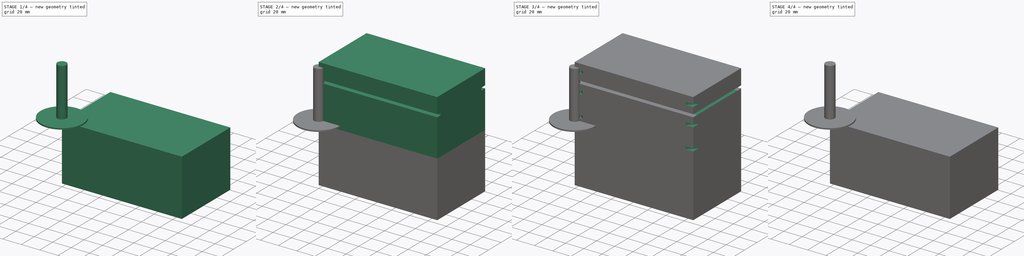
[diagram: build sequence overview — one tinted view per stage of 4, left to right]
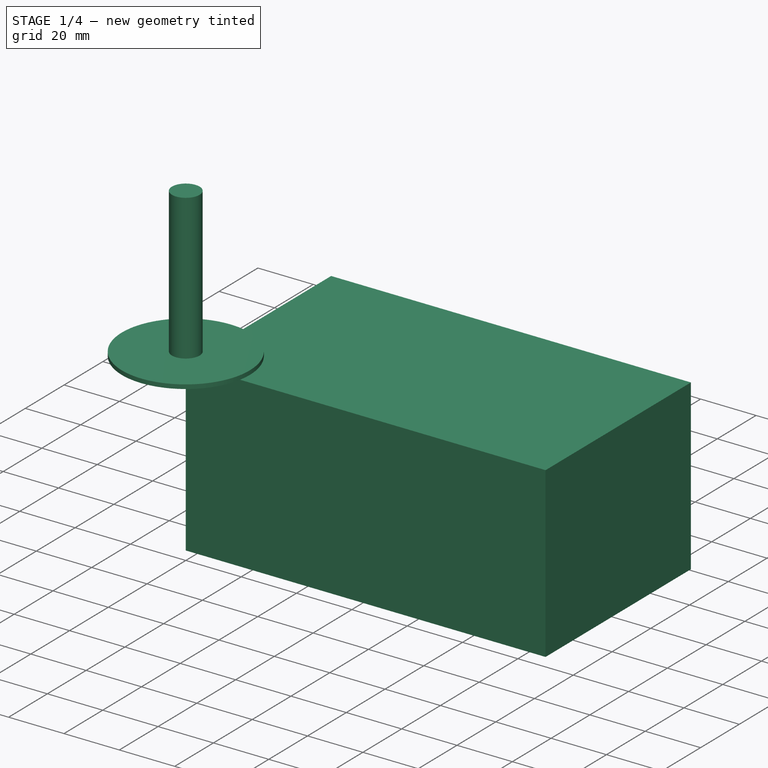
[diagram: stage 1 of 4 — iso view after this stage's code; geometry added in this stage tinted green]
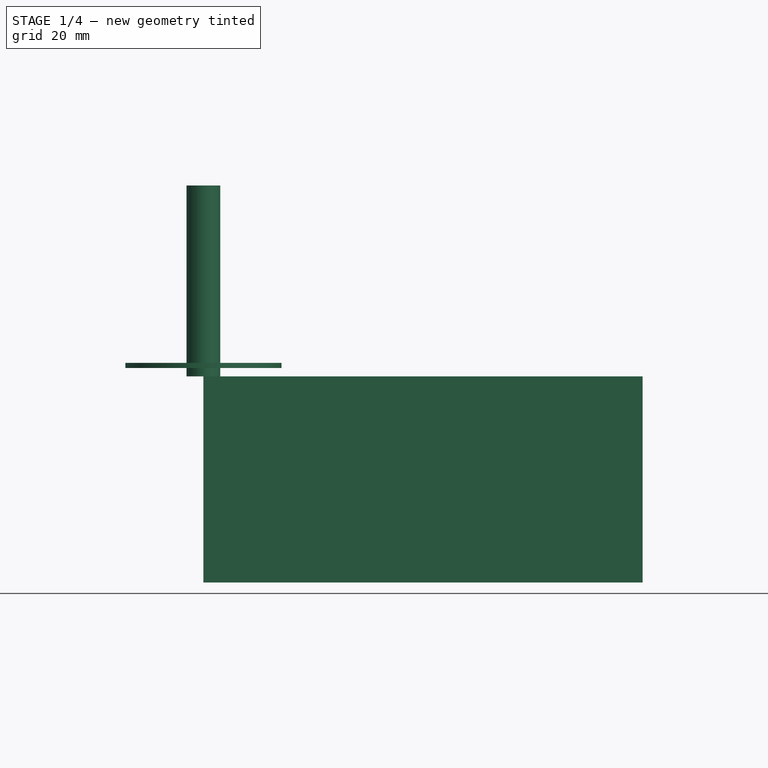
[diagram: stage 1 of 4 — front view after this stage's code; geometry added in this stage tinted green]
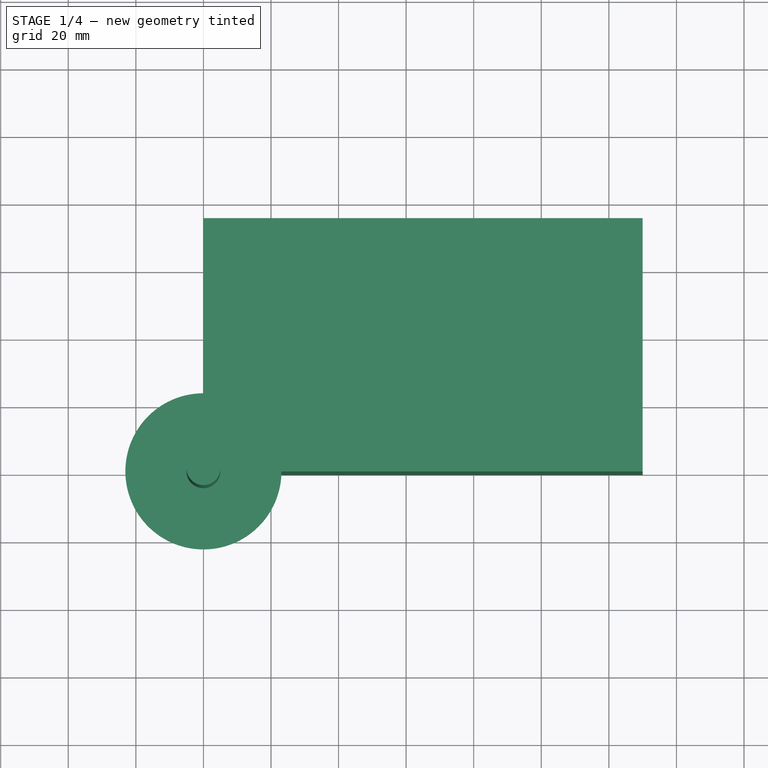
[diagram: stage 1 of 4 — top view after this stage's code; geometry added in this stage tinted green]
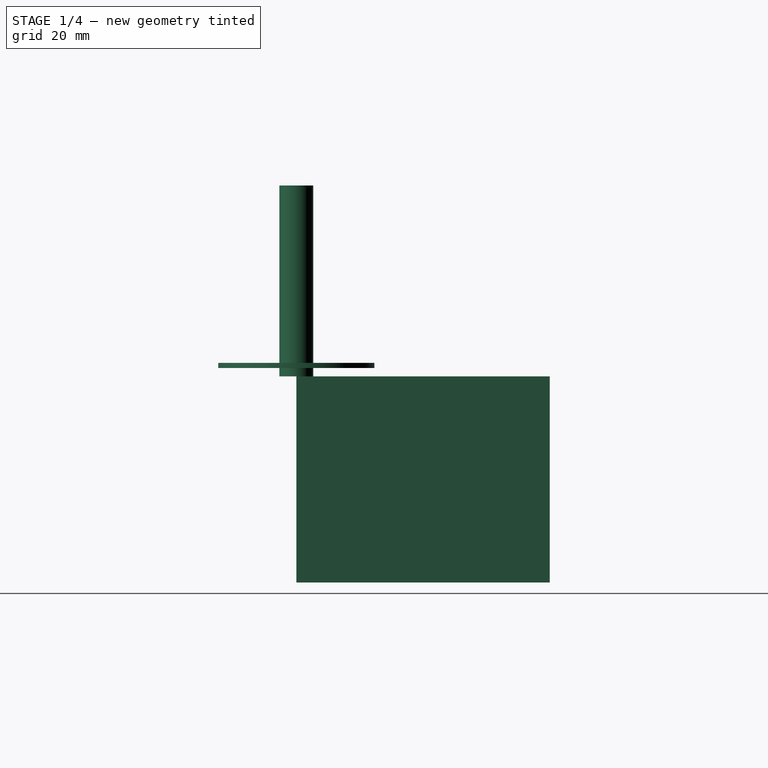
[diagram: stage 1 of 4 — right view after this stage's code; geometry added in this stage tinted green]
FCSTD DOCUMENT  (FreeCAD 0.21R33771 (Git))
Label: cnc_box_lid_removal
License: All rights reserved
LicenseURL: http://en.wikipedia.org/wiki/All_rights_reserved
objects: Path::FeaturePython×16, Part::Part2DObjectPython×8, Sketcher::SketchObject×7, PartDesign::Pocket×6, Part::FeaturePython×5, App::DocumentObjectGroup×3, PartDesign::Pad×1, App::Link×1, PartDesign::Body×1, App::FeaturePython×1, Spreadsheet::Sheet×1
note: 36 computed .brp shape members not serialized (recipe doc carries the construction recipe); baked Part::Feature solids carry a one-line shape summary decoded from their .brp
EXTERNAL_REF file=../master_kumiko_box.FCStd obj=Spreadsheet

FEATURE [Part::FeaturePython] ToolBit001  label="SLID_SAW002"  # Path/CAM toolbit (typed FeaturePython)
  BitPropertyNames = BladeThickness | CapDiameter | CapHeight | Chipload | Diameter | Flutes | Length | Material | ShankDiameter
  BitShape = /Applications/FreeCAD.app/Contents/Resources/Mod/Path/Tools/Shape/slittingsaw.fcstd
  BladeThickness = 1.5
  CapDiameter = 10
  CapHeight = 2.5
  Chipload = 0
  Diameter = 46.2
  File = <userpath>/Library/Application Support/FreeCAD/Macro/SLID_SAW.fctb
  Flutes = 0
  Length = 54
  Material = 0
  ShankDiameter = 10
  ShapeName = slittingsaw
FEATURE [Part::Part2DObjectPython] Line001  # Draft 2D object (typed FeaturePython)
  Area = 0
  ChamferSize = 0
  Closed = false
  End = (162.335,66.8329,0)
  FilletRadius = 0
  Length = 57.2792
  MakeFace = true
  Placement = pos=(-9.6,-0.648093,0) rot=(0,0,1;0rad)
  Points = (2) [(131.433,107.984,0),(171.935,67.481,0)]
  Start = (121.833,107.335,0)
  Subdivisions = 0
  expr: .End.x = -<<SpreadSheet>>.lid_frame_width + <<p>>.d / (2 * sqrt(2)) + 1.5 * <<p>>.d / (2 * sqrt(2)) + <<SpreadSheet>>.box_length
  expr: .End.y = <<p>>.d / (2 * sqrt(2)) - 1.5 * <<p>>.d / (2 * sqrt(2)) + <<SpreadSheet>>.box_width
  expr: .Start.x = <<p>>.d / (2 * sqrt(2)) - 1.5 * <<p>>.d / (2 * sqrt(2)) + <<SpreadSheet>>.box_length
  expr: .Start.y = -<<SpreadSheet>>.lid_frame_width + <<p>>.d / (2 * sqrt(2)) + 1.5 * <<p>>.d / (2 * sqrt(2)) + <<SpreadSheet>>.box_width
FEATURE [Part::Part2DObjectPython] Line002  # Draft 2D object (typed FeaturePython)
  Area = 0
  ChamferSize = 0
  Closed = false
  End = (-32.3354,66.8329,0)
  FilletRadius = 0
  Length = 57.2792
  MakeFace = true
  Placement = pos=(-9.59707,-0.648093,0) rot=(0,0,1;0rad)
  Points = (2) [(17.7642,107.984,0),(-22.7383,67.481,0)]
  Start = (8.16708,107.335,0)
  Subdivisions = 0
  expr: .End.x = <<SpreadSheet>>.lid_frame_width - <<p>>.d / (2 * sqrt(2)) - 1.5 * <<p>>.d / (2 * sqrt(2))
  expr: .End.y = -(-<<p>>.d / (2 * sqrt(2)) + 1.5 * <<p>>.d / (2 * sqrt(2))) + <<SpreadSheet>>.box_width
  expr: .Start.x = -<<p>>.d / (2 * sqrt(2)) + 1.5 * <<p>>.d / (2 * sqrt(2))
  expr: .Start.y = -(<<SpreadSheet>>.lid_frame_width - <<p>>.d / (2 * sqrt(2)) - 1.5 * <<p>>.d / (2 * sqrt(2))) + <<SpreadSheet>>.box_width
FEATURE [Part::Part2DObjectPython] Line003  # Draft 2D object (typed FeaturePython)
  Area = 0
  ChamferSize = 0
  Closed = false
  End = (162.335,8.16708,0)
  FilletRadius = 0
  Length = 57.2792
  MakeFace = true
  Placement = pos=(-9.59707,-0.648093,0) rot=(0,0,1;0rad)
  Points = (2) [(131.43,-31.6873,0),(171.932,8.81518,0)]
  Start = (121.833,-32.3354,0)
  Subdivisions = 0
  expr: .End.x = -(<<SpreadSheet>>.lid_frame_width - <<p>>.d / (2 * sqrt(2)) - 1.5 * <<p>>.d / (2 * sqrt(2))) + <<SpreadSheet>>.box_length
  expr: .End.y = -<<p>>.d / (2 * sqrt(2)) + 1.5 * <<p>>.d / (2 * sqrt(2))
  expr: .Start.x = -(-<<p>>.d / (2 * sqrt(2)) + 1.5 * <<p>>.d / (2 * sqrt(2))) + <<SpreadSheet>>.box_length
  expr: .Start.y = <<SpreadSheet>>.lid_frame_width - <<p>>.d / (2 * sqrt(2)) - 1.5 * <<p>>.d / (2 * sqrt(2))
FEATURE [Part::Part2DObjectPython] Clone2D001  label="Model-Line001"  # Draft 2D object (typed FeaturePython)
  Fuse = false
  Objects = -> [Line001]
  PathResource = Model
  Placement = pos=(-9.6,-0.648093,0) rot=(0,0,1;0rad)
  Scale = (1,1,1)
FEATURE [Part::Part2DObjectPython] Clone2D002  label="Model-Line002"  # Draft 2D object (typed FeaturePython)
  Fuse = false
  Objects = -> [Line002]
  PathResource = Model
  Placement = pos=(-9.59707,-0.648093,0) rot=(0,0,1;0rad)
  Scale = (1,1,1)
FEATURE [Part::Part2DObjectPython] Clone2D003  label="Model-Line003"  # Draft 2D object (typed FeaturePython)
  Fuse = false
  Objects = -> [Line003]
  PathResource = Model
  Placement = pos=(-9.59707,-0.648093,0) rot=(0,0,1;0rad)
  Scale = (1,1,1)
FEATURE [App::DocumentObjectGroup] Model
  Group = -> [Clone,Clone2D,Clone2D001,Clone2D002,Clone2D003]
FEATURE [Part::FeaturePython] Stock001  # WARN: FeaturePython — macro-defined, semantics opaque (R4)
  Height = 61
  Length = 130
  Placement = pos=(0,0,-61) rot=(0,0,1;0rad)
  StockType = CreateBox
  Width = 75
FEATURE [Part::FeaturePython] CutTool001  # WARN: FeaturePython — macro-defined, semantics opaque (R4)
FEATURE [Path::FeaturePython] Engrave  # Path/CAM operation (typed FeaturePython)
  Active = true
  Base = -> [Clone2D]
  ClearanceHeight = 5
  CoolantMode = 0
  CycleTime = 00:07:08
  FinalDepth = -12.5
  OpFinalDepth = -1
  OpStartDepth = 0
  OpStockZMax = 0
  OpStockZMin = -61
  OpToolDiameter = 46.2
  SafeHeight = 3
  StartDepth = -10
  StartVertex = 0
  StepDown = 1
  ToolController = -> SLID_SAW002
  expr: ClearanceHeight = OpStockZMax + SetupSheet.ClearanceHeightOffset
  expr: FinalDepth = -10 - Spreadsheet.ob
  expr: SafeHeight = OpStockZMax + SetupSheet.SafeHeightOffset
  expr: StartDepth = -7 - Spreadsheet.ot
  expr: StepDown = 1
FEATURE [Path::FeaturePython] Engrave001  # Path/CAM operation (typed FeaturePython)
  Active = true
  Base = -> [Clone2D003]
  ClearanceHeight = 5
  CoolantMode = 0
  CycleTime = 00:08:41
  FinalDepth = -12.5
  OpFinalDepth = -1
  OpStartDepth = 0
  OpStockZMax = 0
  OpStockZMin = -61
  OpToolDiameter = 46.2
  SafeHeight = 3
  StartDepth = -10
  StartVertex = 0
  StepDown = 1
  ToolController = -> SLID_SAW002
  expr: ClearanceHeight = OpStockZMax + SetupSheet.ClearanceHeightOffset
  expr: FinalDepth = -10 - Spreadsheet.ob
  expr: SafeHeight = OpStockZMax + SetupSheet.SafeHeightOffset
  expr: StartDepth = -7 - Spreadsheet.ot
  expr: StepDown = 1
FEATURE [Path::FeaturePython] Engrave002  # Path/CAM operation (typed FeaturePython)
  Active = true
  Base = -> [Clone2D001]
  ClearanceHeight = 5
  CoolantMode = 0
  CycleTime = 00:04:19
  FinalDepth = -12.5
  OpFinalDepth = -46.2
  OpStartDepth = 0
  OpStockZMax = 0
  OpStockZMin = -61
  OpToolDiameter = 46.2
  SafeHeight = 3
  StartDepth = -10
  StartVertex = 0
  StepDown = 46.2
  ToolController = -> SLID_SAW002
  expr: ClearanceHeight = OpStockZMax + SetupSheet.ClearanceHeightOffset
  expr: FinalDepth = -10 - Spreadsheet.ob
  expr: SafeHeight = OpStockZMax + SetupSheet.SafeHeightOffset
  expr: StartDepth = -7 - Spreadsheet.ot
  expr: StepDown = OpToolDiameter
FEATURE [Path::FeaturePython] Engrave003  # Path/CAM operation (typed FeaturePython)
  Active = true
  Base = -> [Clone2D002]
  ClearanceHeight = 5
  CoolantMode = 0
  CycleTime = 00:08:23
  FinalDepth = -12.5
  OpFinalDepth = -1
  OpStartDepth = 0
  OpStockZMax = 0
  OpStockZMin = -61
  OpToolDiameter = 46.2
  SafeHeight = 3
  StartDepth = -10
  StartVertex = 0
  StepDown = 1
  ToolController = -> SLID_SAW002
  expr: ClearanceHeight = OpStockZMax + SetupSheet.ClearanceHeightOffset
  expr: FinalDepth = -10 - Spreadsheet.ob
  expr: SafeHeight = OpStockZMax + SetupSheet.SafeHeightOffset
  expr: StartDepth = -7 - Spreadsheet.ot
  expr: StepDown = 1
FEATURE [Path::FeaturePython] Engrave004  # Path/CAM operation (typed FeaturePython)
  Active = true
  BaseShapes = -> [Clone2D]
  ClearanceHeight = 5
  CoolantMode = 0
  CycleTime = 00:09:08
  FinalDepth = -32.5
  OpFinalDepth = -1
  OpStartDepth = 0
  OpStockZMax = 0
  OpStockZMin = -61
  OpToolDiameter = 46.2
  SafeHeight = 3
  StartDepth = -30
  StartVertex = 0
  StepDown = 1
  ToolController = -> SLID_SAW002
  expr: ClearanceHeight = OpStockZMax + SetupSheet.ClearanceHeightOffset
  expr: FinalDepth = -17 - 10 - Spreadsheet.ob - 3
  expr: SafeHeight = OpStockZMax + SetupSheet.SafeHeightOffset
  expr: StartDepth = -17 - 7 - Spreadsheet.ot - 3
  expr: StepDown = 1
FEATURE [Path::FeaturePython] Engrave005  # Path/CAM operation (typed FeaturePython)
  Active = true
  Base = -> [Clone2D003]
  ClearanceHeight = 5
  CoolantMode = 0
  CycleTime = 00:10:41
  FinalDepth = -32.5
  OpFinalDepth = -1
  OpStartDepth = 0
  OpStockZMax = 0
  OpStockZMin = -61
  OpToolDiameter = 46.2
  SafeHeight = 3
  StartDepth = -30
  StartVertex = 0
  StepDown = 1
  ToolController = -> SLID_SAW002
  expr: ClearanceHeight = OpStockZMax + SetupSheet.ClearanceHeightOffset
  expr: FinalDepth = -17 - 10 - Spreadsheet.ob - 3
  expr: SafeHeight = OpStockZMax + SetupSheet.SafeHeightOffset
  expr: StartDepth = -17 - 7 - Spreadsheet.ot - 3
  expr: StepDown = 1
FEATURE [Path::FeaturePython] Engrave006  # Path/CAM operation (typed FeaturePython)
  Active = true
  Base = -> [Clone2D001]
  ClearanceHeight = 5
  CoolantMode = 0
  CycleTime = 00:11:17
  FinalDepth = -32.5
  OpFinalDepth = -1
  OpStartDepth = 0
  OpStockZMax = 0
  OpStockZMin = -61
  OpToolDiameter = 46.2
  SafeHeight = 3
  StartDepth = -30
  StartVertex = 0
  StepDown = 1
  ToolController = -> SLID_SAW002
  expr: ClearanceHeight = OpStockZMax + SetupSheet.ClearanceHeightOffset
  expr: FinalDepth = -17 - 10 - Spreadsheet.ob - 3
  expr: SafeHeight = OpStockZMax + SetupSheet.SafeHeightOffset
  expr: StartDepth = -17 - 7 - Spreadsheet.ot - 3
  expr: StepDown = 1
FEATURE [Path::FeaturePython] Engrave007  # Path/CAM operation (typed FeaturePython)
  Active = true
  Base = -> [Clone2D002]
  ClearanceHeight = 5
  CoolantMode = 0
  CycleTime = 00:10:23
  FinalDepth = -32.5
  OpFinalDepth = -1
  OpStartDepth = 0
  OpStockZMax = 0
  OpStockZMin = -61
  OpToolDiameter = 46.2
  SafeHeight = 3
  StartDepth = -30
  StartVertex = 0
  StepDown = 1
  ToolController = -> SLID_SAW002
  expr: ClearanceHeight = OpStockZMax + SetupSheet.ClearanceHeightOffset
  expr: FinalDepth = -17 - 10 - Spreadsheet.ob - 3
  expr: SafeHeight = OpStockZMax + SetupSheet.SafeHeightOffset
  expr: StartDepth = -17 - 7 - Spreadsheet.ot - 3
  expr: StepDown = 1
FEATURE [Path::FeaturePython] Engrave008  # Path/CAM operation (typed FeaturePython)
  Active = true
  Base = -> [Clone2D]
  ClearanceHeight = 5
  CoolantMode = 0
  CycleTime = 00:11:32
  FinalDepth = -56.5
  OpFinalDepth = -1
  OpStartDepth = 0
  OpStockZMax = 0
  OpStockZMin = -61
  OpToolDiameter = 46.2
  SafeHeight = 3
  StartDepth = -54
  StartVertex = 0
  StepDown = 1
  ToolController = -> SLID_SAW002
  expr: ClearanceHeight = OpStockZMax + SetupSheet.ClearanceHeightOffset
  expr: FinalDepth = -61 + 7 - Spreadsheet.ob
  expr: SafeHeight = OpStockZMax + SetupSheet.SafeHeightOffset
  expr: StartDepth = -61 + 10 - Spreadsheet.ot
  expr: StepDown = 1
FEATURE [Path::FeaturePython] Engrave009  # Path/CAM operation (typed FeaturePython)
  Active = true
  Base = -> [Clone2D003]
  ClearanceHeight = 5
  CoolantMode = 0
  CycleTime = 00:13:05
  FinalDepth = -56.5
  OpFinalDepth = -1
  OpStartDepth = 0
  OpStockZMax = 0
  OpStockZMin = -61
  OpToolDiameter = 46.2
  SafeHeight = 3
  StartDepth = -54
  StartVertex = 0
  StepDown = 1
  ToolController = -> SLID_SAW002
  expr: ClearanceHeight = OpStockZMax + SetupSheet.ClearanceHeightOffset
  expr: FinalDepth = -61 + 7 - Spreadsheet.ob
  expr: SafeHeight = OpStockZMax + SetupSheet.SafeHeightOffset
  expr: StartDepth = -61 + 10 - Spreadsheet.ot
  expr: StepDown = 1
FEATURE [Path::FeaturePython] Engrave010  # Path/CAM operation (typed FeaturePython)
  Active = true
  Base = -> [Clone2D001]
  ClearanceHeight = 5
  CoolantMode = 0
  CycleTime = 00:13:41
  FinalDepth = -56.5
  OpFinalDepth = -1
  OpStartDepth = 0
  OpStockZMax = 0
  OpStockZMin = -61
  OpToolDiameter = 46.2
  SafeHeight = 3
  StartDepth = -54
  StartVertex = 0
  StepDown = 1
  ToolController = -> SLID_SAW002
  expr: ClearanceHeight = OpStockZMax + SetupSheet.ClearanceHeightOffset
  expr: FinalDepth = -61 + 7 - Spreadsheet.ob
  expr: SafeHeight = OpStockZMax + SetupSheet.SafeHeightOffset
  expr: StartDepth = -61 + 10 - Spreadsheet.ot
  expr: StepDown = 1
FEATURE [Path::FeaturePython] Engrave011  # Path/CAM operation (typed FeaturePython)
  Active = true
  Base = -> [Clone2D002]
  ClearanceHeight = 5
  CoolantMode = 0
  CycleTime = 00:12:47
  FinalDepth = -56.5
  OpFinalDepth = -1
  OpStartDepth = 0
  OpStockZMax = 0
  OpStockZMin = -61
  OpToolDiameter = 46.2
  SafeHeight = 3
  StartDepth = -54
  StartVertex = 0
  StepDown = 1
  ToolController = -> SLID_SAW002
  expr: ClearanceHeight = OpStockZMax + SetupSheet.ClearanceHeightOffset
  expr: FinalDepth = -61 + 7 - Spreadsheet.ob
  expr: SafeHeight = OpStockZMax + SetupSheet.SafeHeightOffset
  expr: StartDepth = -61 + 10 - Spreadsheet.ot
  expr: StepDown = 1
FEATURE [App::DocumentObjectGroup] Operations
  Group = -> [Engrave,Engrave001,Engrave002,Engrave003,Engrave004,Engrave005,Engrave006,Engrave007,Engrave008,Engrave009,Engrave010,Engrave011,LeadInOutDressup]
FEATURE [Path::FeaturePython] Job  # Path/CAM operation (typed FeaturePython)
  CycleTime = 02:27:23
  Fixtures = G54
  GeometryTolerance = 0.01
  JobType = 0
  LastPostProcessDate = 2024-04-15 20:15:01.498709
  LastPostProcessOutput = <userpath>/Documents/jewelry_kumiko_box/cnc/bin/kumiko_lid_cut.nc
  Model = -> Model
  Operations = -> Operations
  OrderOutputBy = 0
  PostProcessor = 14
  PostProcessorOutputFile = <userpath>/Documents/jewelry_kumiko_box/cnc/bin/kumiko_lid_cut
  SetupSheet = -> SetupSheet
  SplitOutput = false
  Stock = -> Stock001
  Tools = -> Tools
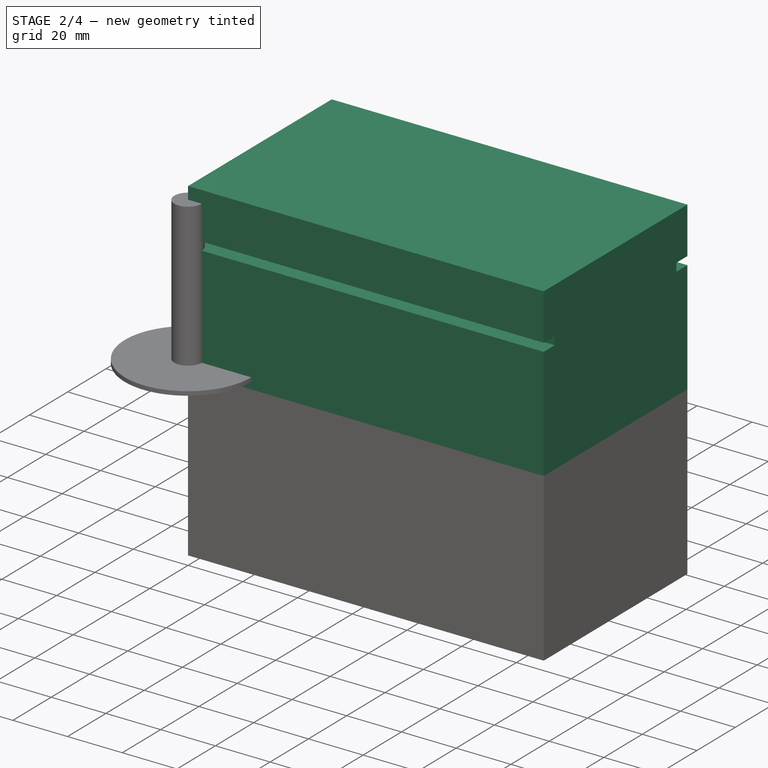
[diagram: stage 2 of 4 — iso view after this stage's code; geometry added in this stage tinted green]
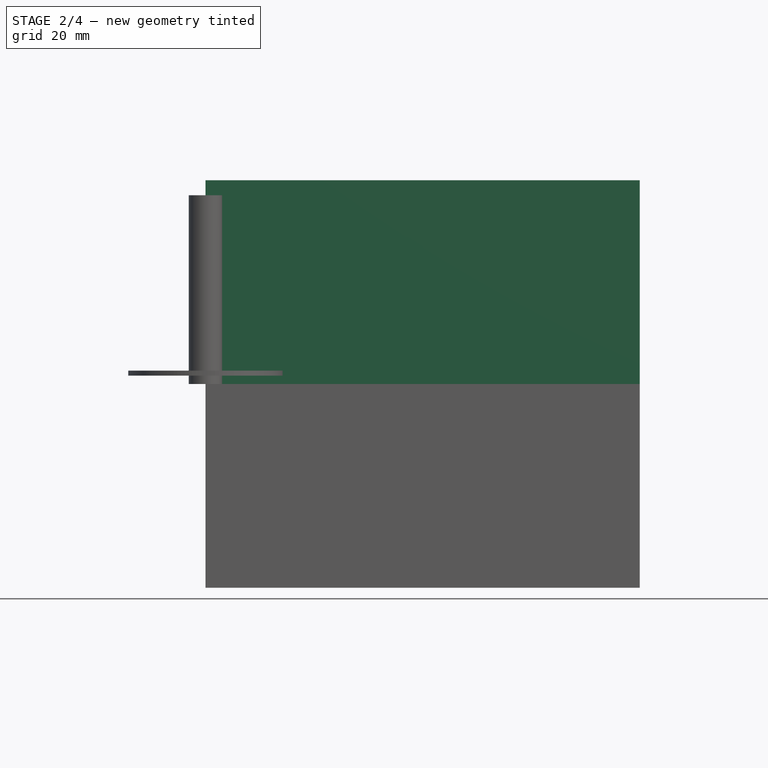
[diagram: stage 2 of 4 — front view after this stage's code; geometry added in this stage tinted green]
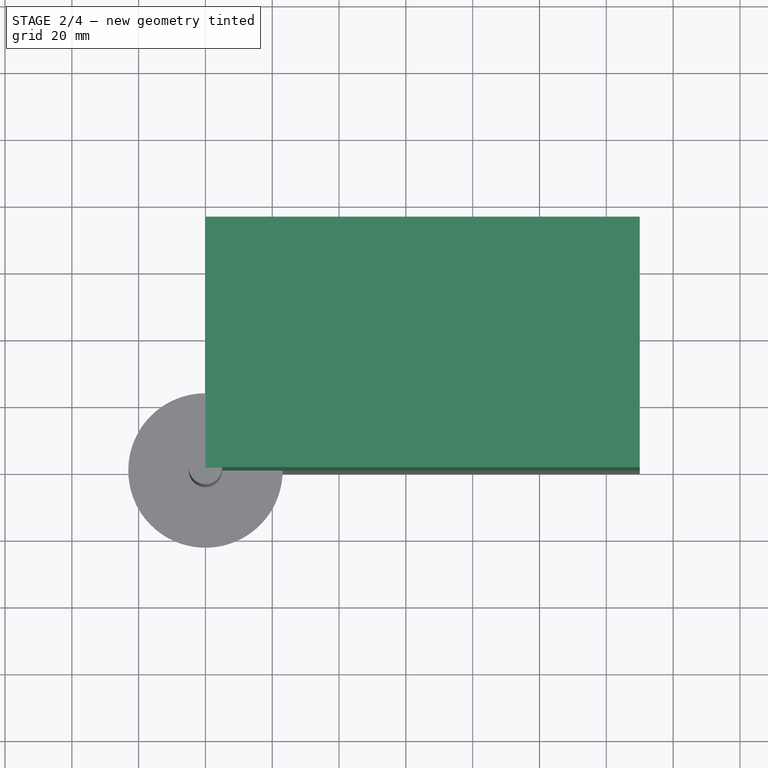
[diagram: stage 2 of 4 — top view after this stage's code; geometry added in this stage tinted green]
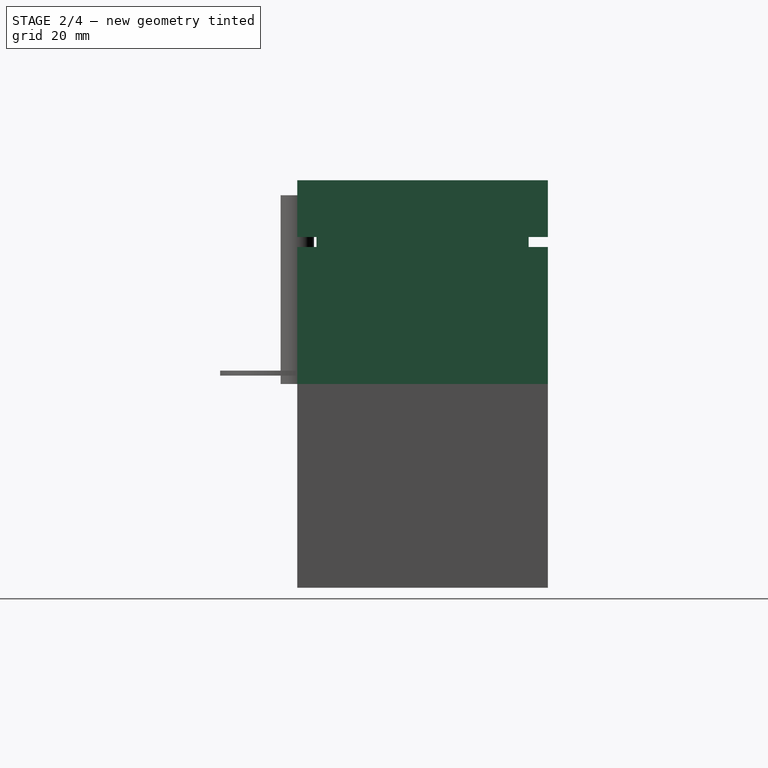
[diagram: stage 2 of 4 — right view after this stage's code; geometry added in this stage tinted green]
FEATURE [Sketcher::SketchObject] Sketch
  FullyConstrained = true
  MapMode = 5
  Support = -> [XY_Plane]
  expr: Constraints[10] = <<SpreadSheet>>.box_width
  expr: Constraints[9] = <<SpreadSheet>>.box_length
  sketch-geometry (4):
    g0: LineSegment StartX=0 StartY=0 StartZ=0 EndX=130 EndY=0 EndZ=0
    g1: LineSegment StartX=130 StartY=0 StartZ=0 EndX=130 EndY=75 EndZ=0
    g2: LineSegment StartX=130 StartY=75 StartZ=0 EndX=0 EndY=75 EndZ=0
    g3: LineSegment StartX=0 StartY=75 StartZ=0 EndX=0 EndY=0 EndZ=0
  constraints (11):
    c: Coincident(g0,g1)
    c: Coincident(g1,g2)
    c: Coincident(g2,g3)
    c: Coincident(g3,g0)
    c: Horizontal(g0)
    c: Horizontal(g2)
    c: Vertical(g1)
    c: Vertical(g3)
    c: Coincident(g0,g-1)
    c: DistanceX(g0,g0) = 130
    c: DistanceY(g3,g3) = 75
FEATURE [PartDesign::Pad] Pad
  Direction = (0,0,1)
  Length = 61
  Length2 = 10
  Profile = -> Sketch
  ReferenceAxis = -> Sketch [N_Axis]
  Type = 0
  expr: Length = <<SpreadSheet>>.box_height - <<SpreadSheet>>.floor_edge + <<SpreadSheet>>.kumiko_thickness
FEATURE [Sketcher::SketchObject] Sketch001
  FullyConstrained = true
  MapMode = 5
  Placement = pos=(130,0,0) rot=(0.57735,0.57735,0.57735;2.0944rad)
  Support = -> [Pad]
  expr: Constraints[10] = <<SpreadSheet>>.box_height - <<SpreadSheet>>.floor_edge + <<SpreadSheet>>.kumiko_thickness - <<SpreadSheet>>.lid_height
  expr: Constraints[11] = 0
  expr: Constraints[20] = <<SpreadSheet>>.box_height - <<SpreadSheet>>.floor_edge + <<SpreadSheet>>.kumiko_thickness - <<SpreadSheet>>.lid_height
  expr: Constraints[21] = <<SpreadSheet>>.kumiko_thickness
  expr: Constraints[22] = <<SpreadSheet>>.box_thickness / 2
  expr: Constraints[23] = <<SpreadSheet>>.box_width
  expr: Constraints[8] = <<SpreadSheet>>.box_thickness / 2
  expr: Constraints[9] = <<SpreadSheet>>.kumiko_thickness
  sketch-geometry (8):
    g0: LineSegment StartX=0 StartY=44 StartZ=0 EndX=5.75 EndY=44 EndZ=0
    g1: LineSegment StartX=5.75 StartY=44 StartZ=0 EndX=5.75 EndY=41 EndZ=0
    g2: LineSegment StartX=5.75 StartY=41 StartZ=0 EndX=0 EndY=41 EndZ=0
    g3: LineSegment StartX=0 StartY=41 StartZ=0 EndX=0 EndY=44 EndZ=0
    g4: LineSegment StartX=69.25 StartY=44 StartZ=0 EndX=75 EndY=44 EndZ=0
    g5: LineSegment StartX=75 StartY=44 StartZ=0 EndX=75 EndY=41 EndZ=0
    g6: LineSegment StartX=75 StartY=41 StartZ=0 EndX=69.25 EndY=41 EndZ=0
    g7: LineSegment StartX=69.25 StartY=41 StartZ=0 EndX=69.25 EndY=44 EndZ=0
  constraints (24):
    c: Coincident(g0,g1)
    c: Coincident(g1,g2)
    c: Coincident(g2,g3)
    c: Coincident(g3,g0)
    c: Horizontal(g0)
    c: Horizontal(g2)
    c: Vertical(g1)
    c: Vertical(g3)
    c: DistanceX(g2,g2) = 5.75
    c: DistanceY(g1,g1) = 3
    c: DistanceY(g-1,g0) = 44
    c: DistanceX(g-1,g2) = 0
    c: Coincident(g4,g5)
    c: Coincident(g5,g6)
    c: Coincident(g6,g7)
    c: Coincident(g7,g4)
    c: Horizontal(g4)
    c: Horizontal(g6)
    c: Vertical(g5)
    c: Vertical(g7)
    c: DistanceY(g-1,g4) = 44
    c: DistanceY(g7,g7) = 3
    c: DistanceX(g4,g4) = 5.75
    c: DistanceX(g-1,g5) = 75
FEATURE [PartDesign::Pocket] Pocket  label="lid_cut001"
  BaseFeature = -> Pad
  Direction = (-1,0,0)
  Length = 4
  Length2 = 5
  Profile = -> Sketch001
  ReferenceAxis = -> Sketch001 [N_Axis]
  Type = 1
FEATURE [Path::FeaturePython] SLID_SAW002  label="SLID_SAW003"  # Path/CAM operation (typed FeaturePython)
  HorizFeed = 1
  HorizRapid = 0
  SpindleDir = 0
  SpindleSpeed = 0
  Tool = -> ToolBit001
  ToolNumber = 2
  VertFeed = 1
  VertRapid = 0
  expr: HorizRapid = SetupSheet.HorizRapid
  expr: VertRapid = SetupSheet.VertRapid
FEATURE [App::DocumentObjectGroup] Tools
  Group = -> [SLID_SAW002]
FEATURE [Path::FeaturePython] Profile  # Path/CAM operation (typed FeaturePython)
  Active = true
  AreaParams:
    Tolerance = 1e-07
    FitArcs = True
    Simplify = False
    CleanDistance = 0.0
    Accuracy = 0.01
    Unit = 1.0
    MinArcPoints = 4
    MaxArcPoints = 100
    ClipperScale = 10000000.0
    Fill = 0
    Coplanar = 0
    Reorient = True
    Outline = False
    Explode = False
    OpenMode = 0
    Deflection = 0.01
    SubjectFill = 0
    ClipFill = 0
    Offset = 17.35
    ExtraPass = 0
    Stepover = 0.0
    LastStepover = 0.0
    JoinType = 0
    EndType = 0
    MiterLimit = 2.0
    RoundPrecision = 0.0
    PocketMode = 0
    ToolRadius = 1.0
    PocketExtraOffset = 0.0
    PocketStepover = 0.0
    PocketLastStepover = 0.0
    FromCenter = False
    Angle = 45.0
    AngleShift = 0.0
    Shift = 0.0
    Thicken = False
    SectionCount = -1
    Stepdown = 1.0
    SectionOffset = 0.0
    SectionTolerance = 1e-07
    SectionMode = 2
    Project = False
  Base = -> [Clone]
  ClearanceHeight = 5
  CoolantMode = 0
  CycleTime = 00:26:18
  Direction = 0
  FinalDepth = -22.5
  HandleMultipleFeatures = 0
  JoinType = 0
  MiterLimit = 0.1
  OffsetExtra = -5.75
  OpFinalDepth = -17
  OpStartDepth = 0
  OpStockZMax = 0
  OpStockZMin = -61
  OpToolDiameter = 46.2
  PathParams = {'orientation': 1, 'feedrate': 1.0, 'feedrate_v': 1.0, 'verbose': True, 'resume_height': 3.0, 'retraction': 5.0, 'return_end': True, 'preamble': False, 'start': Vector (0.0, 0.0, 0.0)}
  SafeHeight = 3
  Side = 0
  SplitArcs = false
  StartDepth = -20
  StartPoint = (0,0,0)
  StepDown = 1
  ToolController = -> SLID_SAW002
  UseComp = true
  UseStartPoint = true
  processCircles = false
  processHoles = false
  processPerimeter = true
  expr: ClearanceHeight = OpStockZMax + SetupSheet.ClearanceHeightOffset
  expr: FinalDepth = -17 - 3 - 2.5
  expr: SafeHeight = OpStockZMax + SetupSheet.SafeHeightOffset
  expr: StartDepth = -22.5 + 2.5
  expr: StepDown = 1
FEATURE [Path::FeaturePython] LeadInOutDressup  # Path/CAM operation (typed FeaturePython)
  Base = -> Profile
  ExtendLeadIn = 0
  ExtendLeadOut = 0
  IncludeLayers = true
  KeepToolDown = false
  LeadIn = true
  LeadOut = true
  Length = 30
  LengthOut = 30
  RapidPlunge = false
  StyleOff = 0
  StyleOn = 0
FEATURE [Spreadsheet::Sheet] Spreadsheet  label="p"
  cells = A1='d; B1(d)=46.2; A2='ot; B2(ot)=3; A3='ob; B3(ob)=2.5
FEATURE [Part::Part2DObjectPython] Line  # Draft 2D object (typed FeaturePython)
  Area = 0
  ChamferSize = 0
  Closed = false
  End = (-32.3354,8.16708,0)
  FilletRadius = 0
  Length = 57.2792
  MakeFace = true
  Placement = pos=(-9.59707,-0.648093,0) rot=(0,0,1;0rad)
  Points = (2) [(17.7642,-31.6873,0),(-22.7383,8.81518,0)]
  Start = (8.16708,-32.3354,0)
  Subdivisions = 0
  expr: .End.x = <<SpreadSheet>>.lid_frame_width - <<p>>.d / (2 * sqrt(2)) - 1.5 * <<p>>.d / (2 * sqrt(2))
  expr: .End.y = -<<p>>.d / (2 * sqrt(2)) + 1.5 * <<p>>.d / (2 * sqrt(2))
  expr: .Start.x = -<<p>>.d / (2 * sqrt(2)) + 1.5 * <<p>>.d / (2 * sqrt(2))
  expr: .Start.y = <<SpreadSheet>>.lid_frame_width - <<p>>.d / (2 * sqrt(2)) - 1.5 * <<p>>.d / (2 * sqrt(2))
FEATURE [Part::Part2DObjectPython] Clone2D  label="Model-Line"  # Draft 2D object (typed FeaturePython)
  Fuse = false
  Objects = -> [Line]
  PathResource = Model
  Placement = pos=(-9.59707,-0.648093,0) rot=(0,0,1;0rad)
  Scale = (1,1,1)
FEATURE [Part::FeaturePython] CutTool  # WARN: FeaturePython — macro-defined, semantics opaque (R4)
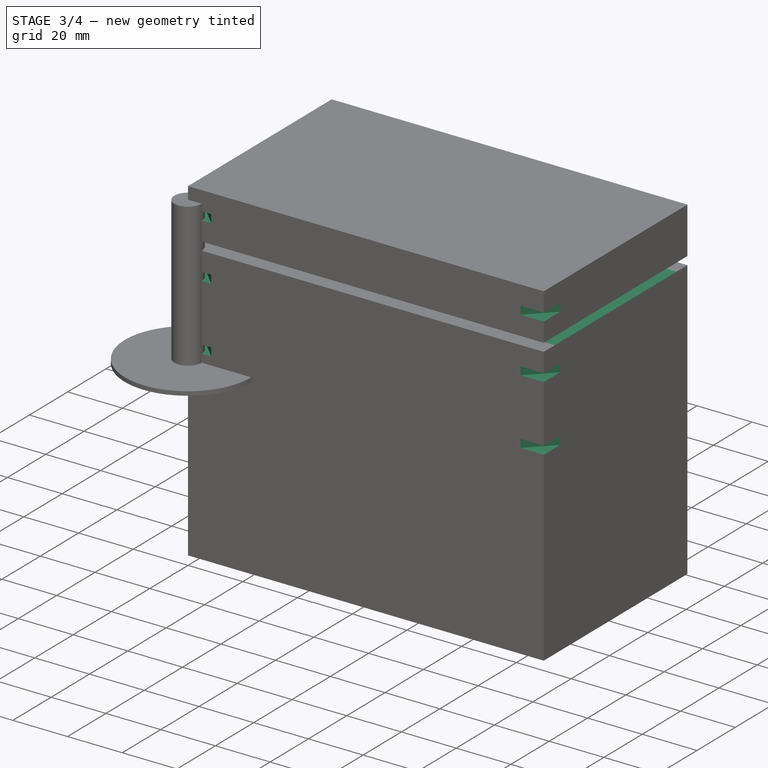
[diagram: stage 3 of 4 — iso view after this stage's code; geometry added in this stage tinted green]
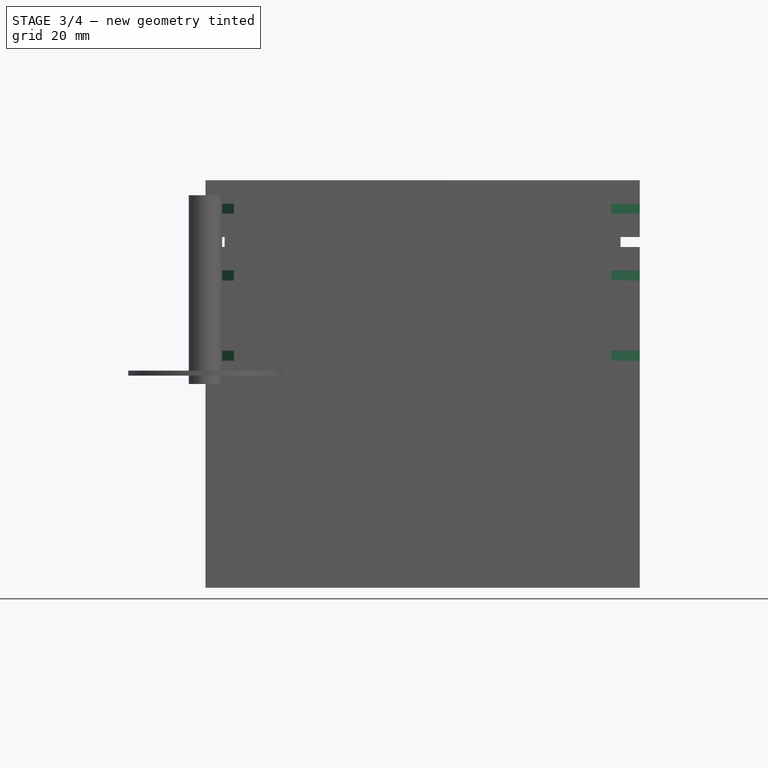
[diagram: stage 3 of 4 — front view after this stage's code; geometry added in this stage tinted green]
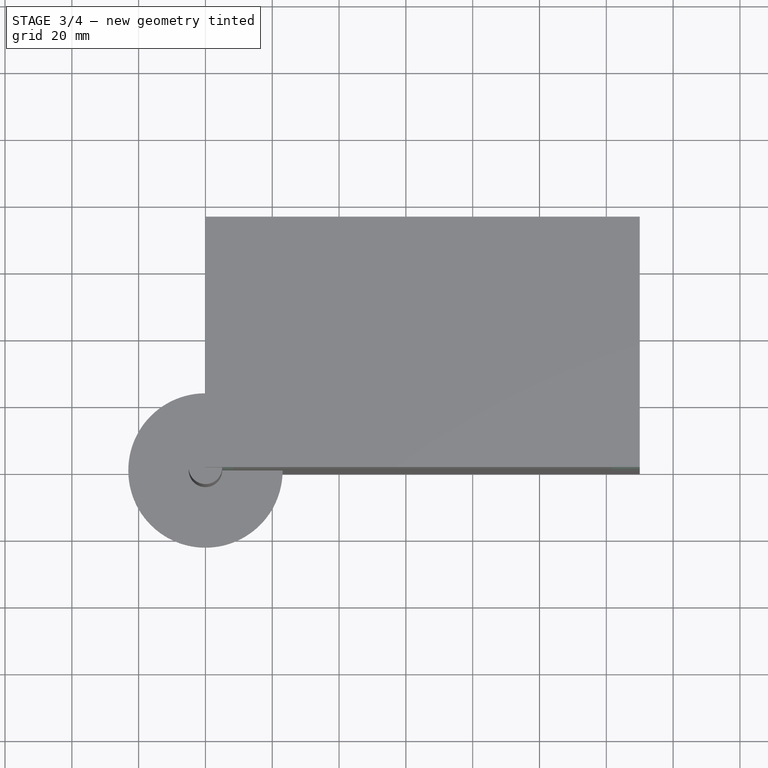
[diagram: stage 3 of 4 — top view after this stage's code; geometry added in this stage tinted green]
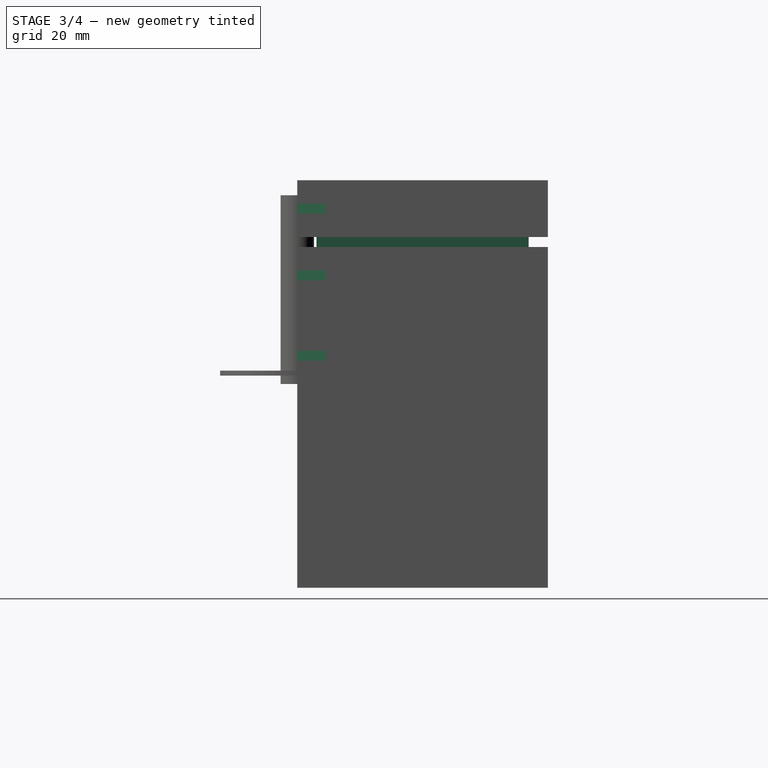
[diagram: stage 3 of 4 — right view after this stage's code; geometry added in this stage tinted green]
FEATURE [Sketcher::SketchObject] Sketch002
  FullyConstrained = true
  MapMode = 5
  Placement = pos=(0,75,0) rot=(0,0.707107,0.707107;3.14159rad)
  Support = -> [Pocket]
  expr: Constraints[18] = <<SpreadSheet>>.box_thickness / 2
  expr: Constraints[19] = <<SpreadSheet>>.kumiko_thickness
  expr: Constraints[20] = <<SpreadSheet>>.box_height - <<SpreadSheet>>.floor_edge + <<SpreadSheet>>.kumiko_thickness - <<SpreadSheet>>.lid_height
  expr: Constraints[21] = <<SpreadSheet>>.box_height - <<SpreadSheet>>.floor_edge + <<SpreadSheet>>.kumiko_thickness - <<SpreadSheet>>.lid_height
  expr: Constraints[22] = <<SpreadSheet>>.box_length
  expr: Constraints[23] = 0
  sketch-geometry (8):
    g0: LineSegment StartX=-130 StartY=44 StartZ=0 EndX=-124.25 EndY=44 EndZ=0
    g1: LineSegment StartX=-124.25 StartY=44 StartZ=0 EndX=-124.25 EndY=41 EndZ=0
    g2: LineSegment StartX=-124.25 StartY=41 StartZ=0 EndX=-130 EndY=41 EndZ=0
    g3: LineSegment StartX=-130 StartY=41 StartZ=0 EndX=-130 EndY=44 EndZ=0
    g4: LineSegment StartX=0 StartY=44 StartZ=0 EndX=-5.75 EndY=44 EndZ=0
    g5: LineSegment StartX=-5.75 StartY=44 StartZ=0 EndX=-5.75 EndY=41 EndZ=0
    g6: LineSegment StartX=-5.75 StartY=41 StartZ=0 EndX=0 EndY=41 EndZ=0
    g7: LineSegment StartX=0 StartY=41 StartZ=0 EndX=0 EndY=44 EndZ=0
  constraints (24):
    c: Coincident(g0,g1)
    c: Coincident(g1,g2)
    c: Coincident(g2,g3)
    c: Coincident(g3,g0)
    c: Horizontal(g0)
    c: Horizontal(g2)
    c: Vertical(g1)
    c: Vertical(g3)
    c: Coincident(g4,g5)
    c: Coincident(g5,g6)
    c: Coincident(g6,g7)
    c: Coincident(g7,g4)
    c: Horizontal(g4)
    c: Horizontal(g6)
    c: Vertical(g5)
    c: Vertical(g7)
    c: Equal(g4,g0)
    c: Equal(g1,g5)
    c: DistanceX(g2,g2) = 5.75
    c: DistanceY(g3,g3) = 3
    c: DistanceY(g-1,g4) = 44
    c: DistanceY(g-1,g0) = 44
    c: DistanceX(g2,g-1) = 130
    c: DistanceX(g-1,g6) = 0
FEATURE [PartDesign::Pocket] Pocket001  label="lid_cut002"
  BaseFeature = -> Pocket
  Direction = (0,-1,2e-16)
  Length = 5
  Length2 = 5
  Profile = -> Sketch002
  ReferenceAxis = -> Sketch002 [N_Axis]
  Type = 1
FEATURE [Sketcher::SketchObject] Sketch003
  FullyConstrained = true
  MapMode = 5
  Placement = pos=(0,0,0) rot=(1,0,0;1.5708rad)
  Support = -> [XZ_Plane]
  expr: Constraints[28] = <<SpreadSheet>>.kumiko_thickness
  expr: Constraints[29] = <<SpreadSheet>>.lid_frame_width
  expr: Constraints[33] = <<SpreadSheet>>.box_height - <<SpreadSheet>>.floor_edge + <<SpreadSheet>>.kumiko_thickness - <<SpreadSheet>>.lid_height / 2 - <<SpreadSheet>>.kumiko_thickness / 2
  expr: Constraints[34] = <<SpreadSheet>>.box_height - <<SpreadSheet>>.floor_edge - <<SpreadSheet>>.lid_height - <<SpreadSheet>>.lid_height / 2 - <<SpreadSheet>>.kumiko_thickness / 2
  expr: Constraints[35] = <<SpreadSheet>>.lid_height / 2 - <<SpreadSheet>>.kumiko_thickness / 2
  sketch-geometry (12):
    g0: LineSegment StartX=0 StartY=54 StartZ=0 EndX=8.5 EndY=54 EndZ=0
    g1: LineSegment StartX=8.5 StartY=54 StartZ=0 EndX=8.5 EndY=51 EndZ=0
    g2: LineSegment StartX=8.5 StartY=51 StartZ=0 EndX=0 EndY=51 EndZ=0
    g3: LineSegment StartX=0 StartY=51 StartZ=0 EndX=0 EndY=54 EndZ=0
    g4: LineSegment StartX=0 StartY=31 StartZ=0 EndX=8.5 EndY=31 EndZ=0
    g5: LineSegment StartX=8.5 StartY=31 StartZ=0 EndX=8.5 EndY=34 EndZ=0
    g6: LineSegment StartX=8.5 StartY=34 StartZ=0 EndX=0 EndY=34 EndZ=0
    g7: LineSegment StartX=0 StartY=34 StartZ=0 EndX=0 EndY=31 EndZ=0
    g8: LineSegment StartX=0 StartY=7 StartZ=0 EndX=8.5 EndY=7 EndZ=0
    g9: LineSegment StartX=8.5 StartY=7 StartZ=0 EndX=8.5 EndY=10 EndZ=0
    g10: LineSegment StartX=8.5 StartY=10 StartZ=0 EndX=0 EndY=10 EndZ=0
    g11: LineSegment StartX=0 StartY=10 StartZ=0 EndX=0 EndY=7 EndZ=0
  constraints (36):
    c: Coincident(g0,g1)
    c: Coincident(g1,g2)
    c: Coincident(g2,g3)
    c: Coincident(g3,g0)
    c: Horizontal(g0)
    c: Horizontal(g2)
    c: Vertical(g1)
    c: Vertical(g3)
    c: Coincident(g4,g5)
    c: Coincident(g5,g6)
    c: Coincident(g6,g7)
    c: Coincident(g7,g4)
    c: Horizontal(g4)
    c: Horizontal(g6)
    c: Vertical(g5)
    c: Vertical(g7)
    c: Coincident(g8,g9)
    c: Coincident(g9,g10)
    c: Coincident(g10,g11)
    c: Coincident(g11,g8)
    c: Horizontal(g8)
    c: Horizontal(g10)
    c: Vertical(g9)
    c: Vertical(g11)
    c: Equal(g0,g4)
    c: Equal(g0,g8)
    c: Equal(g1,g5)
    c: Equal(g1,g9)
    c: DistanceY(g3,g3) = 3
    c: DistanceX(g0,g0) = 8.5
    c: DistanceX(g-1,g10) = 0
    c: DistanceX(g-1,g6) = 0
    c: DistanceX(g-1,g2) = 0
    c: DistanceY(g-1,g2) = 51
    c: DistanceY(g-1,g4) = 31
    c: DistanceY(g-1,g8) = 7
FEATURE [PartDesign::Pocket] Pocket002  label="miter_slot004"
  BaseFeature = -> Pocket001
  Direction = (-1,1,0)
  Length = 12.0208
  Length2 = 5
  Profile = -> Sketch003
  ReferenceAxis = -> Sketch003 [N_Axis]
  Type = 0
  UseCustomVector = true
  expr: Length = <<SpreadSheet>>.lid_frame_width * sqrt(2)
FEATURE [App::Link] Link  label="SpreadSheet"
  LinkedObject = -> <external ../master_kumiko_box.FCStd>#Spreadsheet
FEATURE [Sketcher::SketchObject] Sketch004
  FullyConstrained = true
  MapMode = 5
  Placement = pos=(0,0,0) rot=(1,0,0;1.5708rad)
  Support = -> [Pocket002]
  expr: Constraints[28] = <<SpreadSheet>>.lid_frame_width
  expr: Constraints[29] = <<SpreadSheet>>.kumiko_thickness
  expr: Constraints[30] = <<SpreadSheet>>.box_length
  expr: Constraints[31] = <<SpreadSheet>>.box_length
  expr: Constraints[32] = <<SpreadSheet>>.box_length
  expr: Constraints[33] = <<SpreadSheet>>.lid_height / 2 - <<SpreadSheet>>.kumiko_thickness / 2
  expr: Constraints[34] = <<SpreadSheet>>.box_height - <<SpreadSheet>>.floor_edge - <<SpreadSheet>>.lid_height * 3 / 2 - <<SpreadSheet>>.kumiko_thickness / 2
  expr: Constraints[35] = <<SpreadSheet>>.box_height - <<SpreadSheet>>.floor_edge + <<SpreadSheet>>.kumiko_thickness - <<SpreadSheet>>.lid_height / 2 - <<SpreadSheet>>.kumiko_thickness / 2
  sketch-geometry (12):
    g0: LineSegment StartX=121.5 StartY=54 StartZ=0 EndX=130 EndY=54 EndZ=0
    g1: LineSegment StartX=130 StartY=54 StartZ=0 EndX=130 EndY=51 EndZ=0
    g2: LineSegment StartX=130 StartY=51 StartZ=0 EndX=121.5 EndY=51 EndZ=0
    g3: LineSegment StartX=121.5 StartY=51 StartZ=0 EndX=121.5 EndY=54 EndZ=0
    g4: LineSegment StartX=121.5 StartY=31 StartZ=0 EndX=130 EndY=31 EndZ=0
    g5: LineSegment StartX=130 StartY=31 StartZ=0 EndX=130 EndY=34 EndZ=0
    g6: LineSegment StartX=130 StartY=34 StartZ=0 EndX=121.5 EndY=34 EndZ=0
    g7: LineSegment StartX=121.5 StartY=34 StartZ=0 EndX=121.5 EndY=31 EndZ=0
    g8: LineSegment StartX=121.5 StartY=10 StartZ=0 EndX=130 EndY=10 EndZ=0
    g9: LineSegment StartX=130 StartY=10 StartZ=0 EndX=130 EndY=7 EndZ=0
    g10: LineSegment StartX=130 StartY=7 StartZ=0 EndX=121.5 EndY=7 EndZ=0
    g11: LineSegment StartX=121.5 StartY=7 StartZ=0 EndX=121.5 EndY=10 EndZ=0
  constraints (36):
    c: Coincident(g0,g1)
    c: Coincident(g1,g2)
    c: Coincident(g2,g3)
    c: Coincident(g3,g0)
    c: Horizontal(g0)
    c: Horizontal(g2)
    c: Vertical(g1)
    c: Vertical(g3)
    c: Coincident(g4,g5)
    c: Coincident(g5,g6)
    c: Coincident(g6,g7)
    c: Coincident(g7,g4)
    c: Horizontal(g4)
    c: Horizontal(g6)
    c: Vertical(g5)
    c: Vertical(g7)
    c: Coincident(g8,g9)
    c: Coincident(g9,g10)
    c: Coincident(g10,g11)
    c: Coincident(g11,g8)
    c: Horizontal(g8)
    c: Horizontal(g10)
    c: Vertical(g9)
    c: Vertical(g11)
    c: Equal(g0,g4)
    c: Equal(g0,g8)
    c: Equal(g1,g5)
    c: Equal(g1,g9)
    c: DistanceX(g0,g0) = 8.5
    c: DistanceY(g3,g3) = 3
    c: DistanceX(g-1,g1) = 130
    c: DistanceX(g-1,g5) = 130
    c: DistanceX(g-1,g8) = 130
    c: DistanceY(g-1,g10) = 7
    c: DistanceY(g-1,g4) = 31
    c: DistanceY(g-1,g2) = 51
FEATURE [PartDesign::Pocket] Pocket003  label="miter_slot003"
  BaseFeature = -> Pocket002
  Direction = (1,1,0)
  Length = 12.0208
  Length2 = 5
  Profile = -> Sketch004
  ReferenceAxis = -> Sketch004 [N_Axis]
  Type = 0
  UseCustomVector = true
  expr: Length = <<SpreadSheet>>.lid_frame_width * sqrt(2)
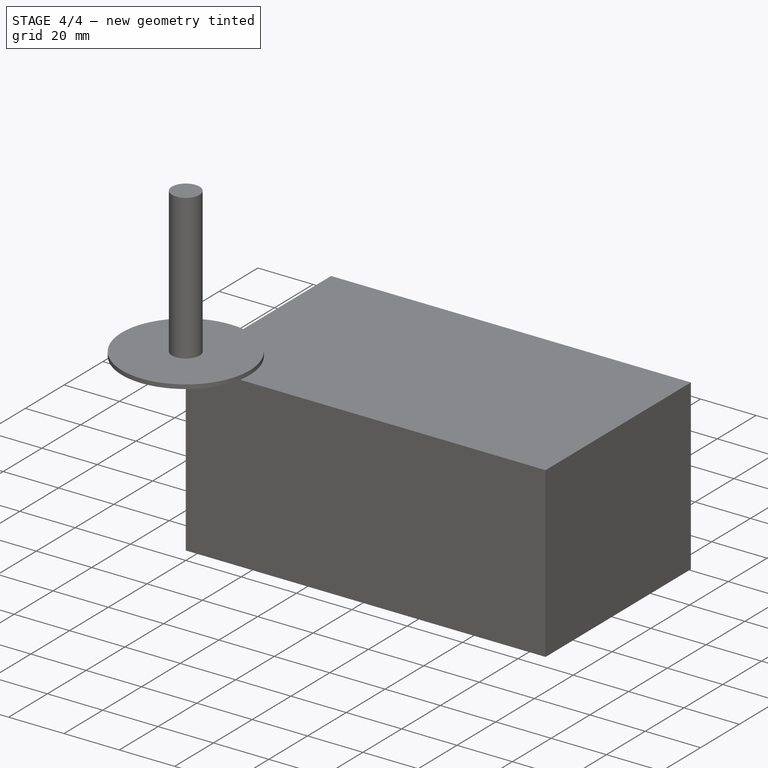
[diagram: stage 4 of 4 — iso view after this stage's code; geometry added in this stage tinted green]
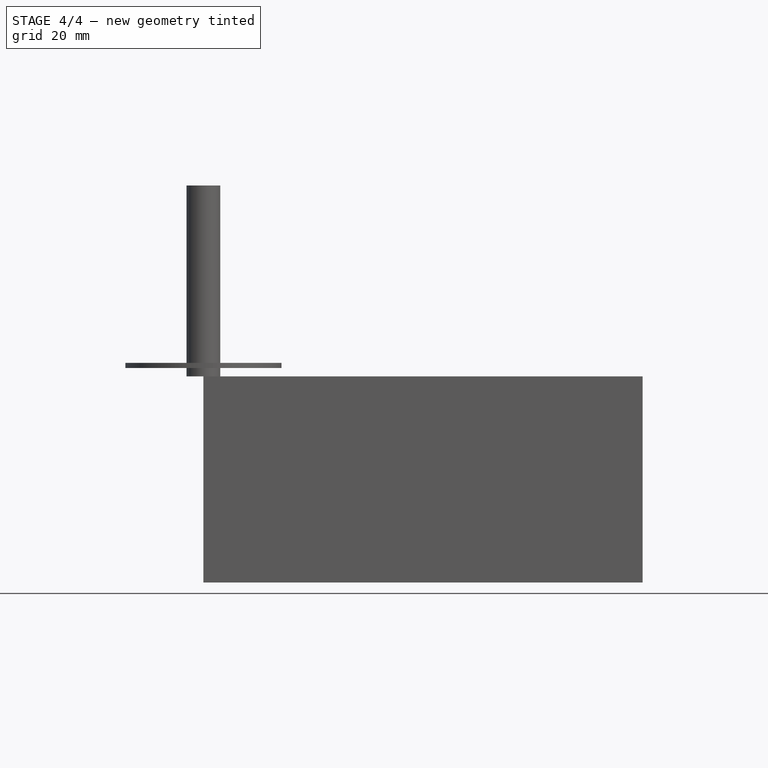
[diagram: stage 4 of 4 — front view after this stage's code; geometry added in this stage tinted green]
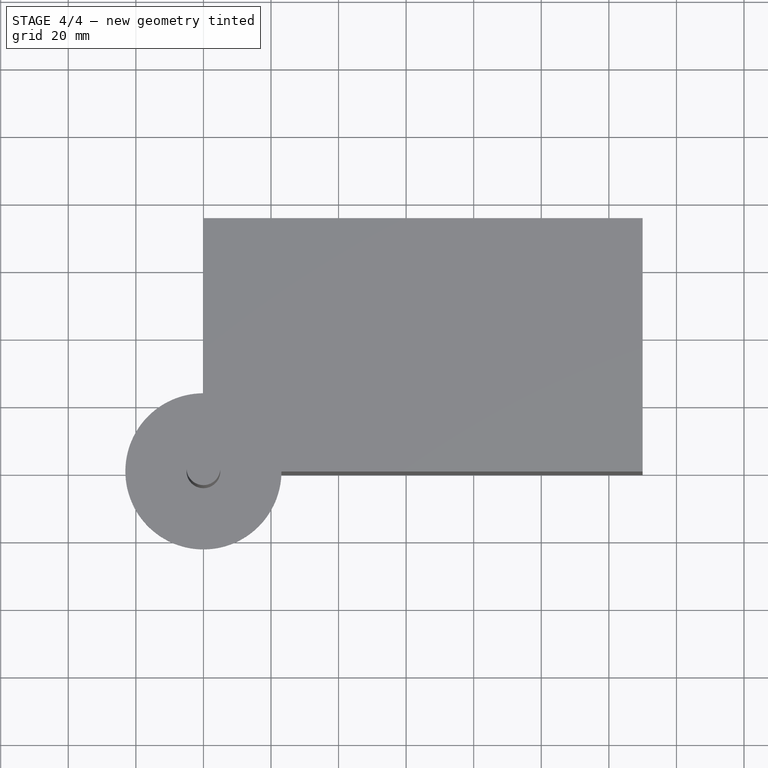
[diagram: stage 4 of 4 — top view after this stage's code; geometry added in this stage tinted green]
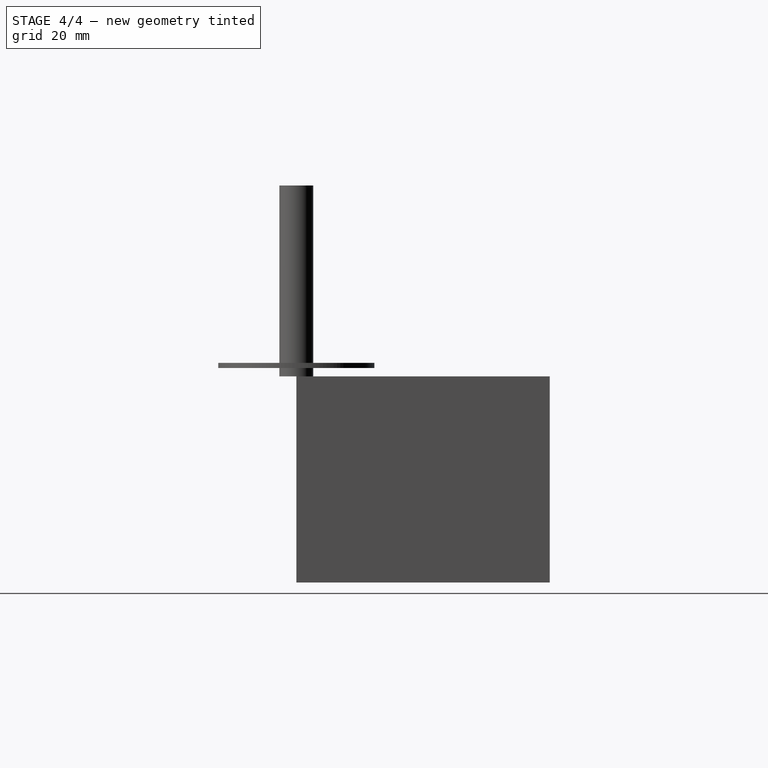
[diagram: stage 4 of 4 — right view after this stage's code; geometry added in this stage tinted green]
FEATURE [Sketcher::SketchObject] Sketch005
  FullyConstrained = true
  MapMode = 5
  Placement = pos=(0,75,0) rot=(0,0.707107,0.707107;3.14159rad)
  Support = -> [Pocket003]
  expr: Constraints[28] = <<SpreadSheet>>.lid_frame_width
  expr: Constraints[29] = <<SpreadSheet>>.kumiko_thickness
  expr: Constraints[30] = 0
  expr: Constraints[31] = 0
  expr: Constraints[32] = 0
  expr: Constraints[33] = <<SpreadSheet>>.lid_height / 2 - <<SpreadSheet>>.kumiko_thickness / 2
  expr: Constraints[34] = <<SpreadSheet>>.box_height - <<SpreadSheet>>.floor_edge - <<SpreadSheet>>.lid_height * 3 / 2 - <<SpreadSheet>>.kumiko_thickness / 2
  expr: Constraints[35] = <<SpreadSheet>>.box_height - <<SpreadSheet>>.floor_edge + <<SpreadSheet>>.kumiko_thickness - <<SpreadSheet>>.lid_height / 2 - <<SpreadSheet>>.kumiko_thickness / 2
  sketch-geometry (12):
    g0: LineSegment StartX=-8.5 StartY=54 StartZ=0 EndX=0 EndY=54 EndZ=0
    g1: LineSegment StartX=0 StartY=54 StartZ=0 EndX=0 EndY=51 EndZ=0
    g2: LineSegment StartX=0 StartY=51 StartZ=0 EndX=-8.5 EndY=51 EndZ=0
    g3: LineSegment StartX=-8.5 StartY=51 StartZ=0 EndX=-8.5 EndY=54 EndZ=0
    g4: LineSegment StartX=-8.5 StartY=34 StartZ=0 EndX=0 EndY=34 EndZ=0
    g5: LineSegment StartX=0 StartY=34 StartZ=0 EndX=0 EndY=31 EndZ=0
    g6: LineSegment StartX=0 StartY=31 StartZ=0 EndX=-8.5 EndY=31 EndZ=0
    g7: LineSegment StartX=-8.5 StartY=31 StartZ=0 EndX=-8.5 EndY=34 EndZ=0
    g8: LineSegment StartX=-8.5 StartY=10 StartZ=0 EndX=0 EndY=10 EndZ=0
    g9: LineSegment StartX=0 StartY=10 StartZ=0 EndX=0 EndY=7 EndZ=0
    g10: LineSegment StartX=0 StartY=7 StartZ=0 EndX=-8.5 EndY=7 EndZ=0
    g11: LineSegment StartX=-8.5 StartY=7 StartZ=0 EndX=-8.5 EndY=10 EndZ=0
  constraints (36):
    c: Coincident(g0,g1)
    c: Coincident(g1,g2)
    c: Coincident(g2,g3)
    c: Coincident(g3,g0)
    c: Horizontal(g0)
    c: Horizontal(g2)
    c: Vertical(g1)
    c: Vertical(g3)
    c: Coincident(g4,g5)
    c: Coincident(g5,g6)
    c: Coincident(g6,g7)
    c: Coincident(g7,g4)
    c: Horizontal(g4)
    c: Horizontal(g6)
    c: Vertical(g5)
    c: Vertical(g7)
    c: Coincident(g8,g9)
    c: Coincident(g9,g10)
    c: Coincident(g10,g11)
    c: Coincident(g11,g8)
    c: Horizontal(g8)
    c: Horizontal(g10)
    c: Vertical(g9)
    c: Vertical(g11)
    c: Equal(g0,g4)
    c: Equal(g0,g8)
    c: Equal(g1,g5)
    c: Equal(g1,g9)
    c: DistanceX(g0,g0) = 8.5
    c: DistanceY(g3,g3) = 3
    c: DistanceX(g1,g-1) = 0
    c: DistanceX(g5,g-1) = 0
    c: DistanceX(g9,g-1) = 0
    c: DistanceY(g-1,g9) = 7
    c: DistanceY(g-1,g5) = 31
    c: DistanceY(g-1,g2) = 51
FEATURE [PartDesign::Pocket] Pocket004  label="miter_slot002"
  BaseFeature = -> Pocket003
  Direction = (-1,-1,0)
  Length = 12.0208
  Length2 = 5
  Profile = -> Sketch005
  ReferenceAxis = -> Sketch005 [N_Axis]
  Type = 0
  UseCustomVector = true
  expr: Length = <<SpreadSheet>>.lid_frame_width * sqrt(2)
FEATURE [Sketcher::SketchObject] Sketch006
  FullyConstrained = true
  MapMode = 5
  Placement = pos=(0,75,0) rot=(0,0.707107,0.707107;3.14159rad)
  Support = -> [Pocket004]
  expr: Constraints[28] = <<SpreadSheet>>.lid_frame_width
  expr: Constraints[29] = <<SpreadSheet>>.kumiko_thickness
  expr: Constraints[30] = <<SpreadSheet>>.box_length
  expr: Constraints[31] = <<SpreadSheet>>.box_length
  expr: Constraints[32] = <<SpreadSheet>>.box_length
  expr: Constraints[33] = <<SpreadSheet>>.lid_height / 2 - <<SpreadSheet>>.kumiko_thickness / 2
  expr: Constraints[34] = <<SpreadSheet>>.box_height - <<SpreadSheet>>.floor_edge - <<SpreadSheet>>.lid_height * 3 / 2 - <<SpreadSheet>>.kumiko_thickness / 2
  expr: Constraints[35] = <<SpreadSheet>>.box_height - <<SpreadSheet>>.floor_edge + <<SpreadSheet>>.kumiko_thickness - <<SpreadSheet>>.lid_height / 2 - <<SpreadSheet>>.kumiko_thickness / 2
  sketch-geometry (12):
    g0: LineSegment StartX=-130 StartY=31 StartZ=0 EndX=-121.5 EndY=31 EndZ=0
    g1: LineSegment StartX=-121.5 StartY=31 StartZ=0 EndX=-121.5 EndY=34 EndZ=0
    g2: LineSegment StartX=-121.5 StartY=34 StartZ=0 EndX=-130 EndY=34 EndZ=0
    g3: LineSegment StartX=-130 StartY=34 StartZ=0 EndX=-130 EndY=31 EndZ=0
    g4: LineSegment StartX=-130 StartY=54 StartZ=0 EndX=-121.5 EndY=54 EndZ=0
    g5: LineSegment StartX=-121.5 StartY=54 StartZ=0 EndX=-121.5 EndY=51 EndZ=0
    g6: LineSegment StartX=-121.5 StartY=51 StartZ=0 EndX=-130 EndY=51 EndZ=0
    g7: LineSegment StartX=-130 StartY=51 StartZ=0 EndX=-130 EndY=54 EndZ=0
    g8: LineSegment StartX=-130 StartY=10 StartZ=0 EndX=-121.5 EndY=10 EndZ=0
    g9: LineSegment StartX=-121.5 StartY=10 StartZ=0 EndX=-121.5 EndY=7 EndZ=0
    g10: LineSegment StartX=-121.5 StartY=7 StartZ=0 EndX=-130 EndY=7 EndZ=0
    g11: LineSegment StartX=-130 StartY=7 StartZ=0 EndX=-130 EndY=10 EndZ=0
  constraints (36):
    c: Coincident(g0,g1)
    c: Coincident(g1,g2)
    c: Coincident(g2,g3)
    c: Coincident(g3,g0)
    c: Horizontal(g0)
    c: Horizontal(g2)
    c: Vertical(g1)
    c: Vertical(g3)
    c: Coincident(g4,g5)
    c: Coincident(g5,g6)
    c: Coincident(g6,g7)
    c: Coincident(g7,g4)
    c: Horizontal(g4)
    c: Horizontal(g6)
    c: Vertical(g5)
    c: Vertical(g7)
    c: Coincident(g8,g9)
    c: Coincident(g9,g10)
    c: Coincident(g10,g11)
    c: Coincident(g11,g8)
    c: Horizontal(g8)
    c: Horizontal(g10)
    c: Vertical(g9)
    c: Vertical(g11)
    c: Equal(g4,g0)
    c: Equal(g4,g8)
    c: Equal(g5,g1)
    c: Equal(g5,g9)
    c: DistanceX(g4,g4) = 8.5
    c: DistanceY(g5,g5) = 3
    c: DistanceX(g10,g-1) = 130
    c: DistanceX(g2,g-1) = 130
    c: DistanceX(g6,g-1) = 130
    c: DistanceY(g-1,g9) = 7
    c: DistanceY(g-1,g0) = 31
    c: DistanceY(g-1,g5) = 51
FEATURE [PartDesign::Pocket] Pocket005  label="miter_slot001"
  BaseFeature = -> Pocket004
  Direction = (1,-1,0)
  Length = 12.0208
  Length2 = 5
  Profile = -> Sketch006
  ReferenceAxis = -> Sketch006 [N_Axis]
  Type = 0
  UseCustomVector = true
  expr: Length = <<SpreadSheet>>.lid_frame_width * sqrt(2)
FEATURE [PartDesign::Body] Body  label="miter_slot_and_lid_cut"
  Group = -> [Sketch,Pad,Sketch001,Pocket,Sketch002,Pocket001,Sketch003,Pocket002,Sketch004,Pocket003,Sketch005,Pocket004,Sketch006,Pocket005]
  Origin = -> Origin
  Placement = pos=(0,0,-61) rot=(0,0,1;0rad)
  Tip = -> Pocket005
  expr: .Placement.Base.z = -(<<SpreadSheet>>.box_height - <<SpreadSheet>>.floor_edge + <<SpreadSheet>>.kumiko_thickness)
FEATURE [App::FeaturePython] SetupSheet  # Path/CAM operation (typed FeaturePython)
  ClearanceHeightExpression = OpStockZMax+SetupSheet.ClearanceHeightOffset
  ClearanceHeightOffset = 5
  CoolantMode = 0
  CoolantModes = None | Flood | Mist
  FinalDepthExpression = OpFinalDepth
  HorizRapid = 0
  SafeHeightExpression = OpStockZMax+SetupSheet.SafeHeightOffset
  SafeHeightOffset = 3
  StartDepthExpression = OpStartDepth
  StepDownExpression = OpToolDiameter
  VertRapid = 0
FEATURE [Part::FeaturePython] Clone  label="Model-miter_slot_and_lid_cut"  # Draft clone (typed FeaturePython)
  AttacherType = Attacher::AttachEngine3D
  Fuse = false
  Objects = -> [Body]
  PathResource = Model
  Placement = pos=(0,0,-61) rot=(0,0,1;0rad)
  Scale = (1,1,1)
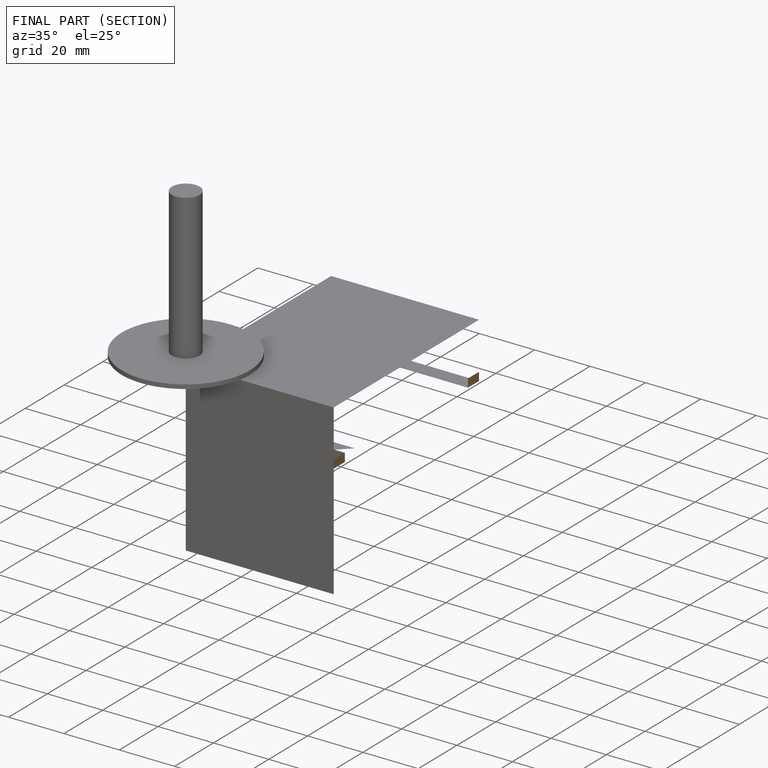
[diagram: finished part — half-section view (interior)]
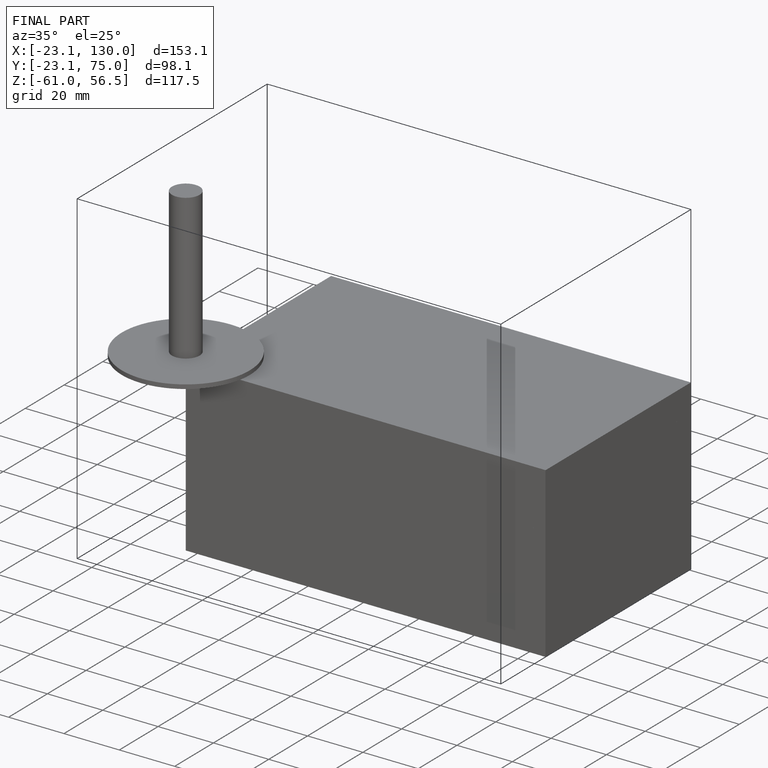
[diagram: finished part — iso view with bounding-box wireframe]
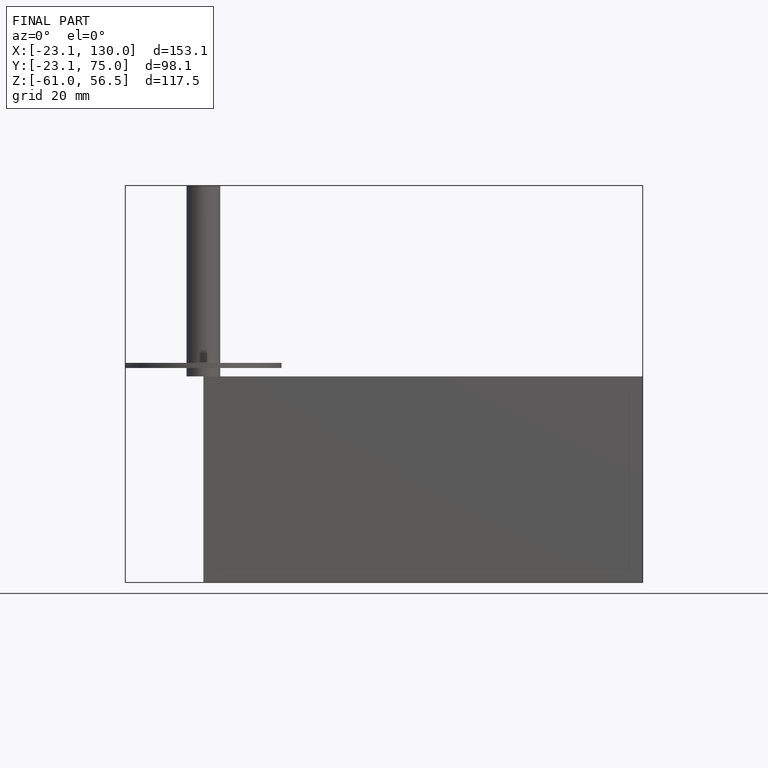
[diagram: finished part — front view with bounding-box wireframe]
